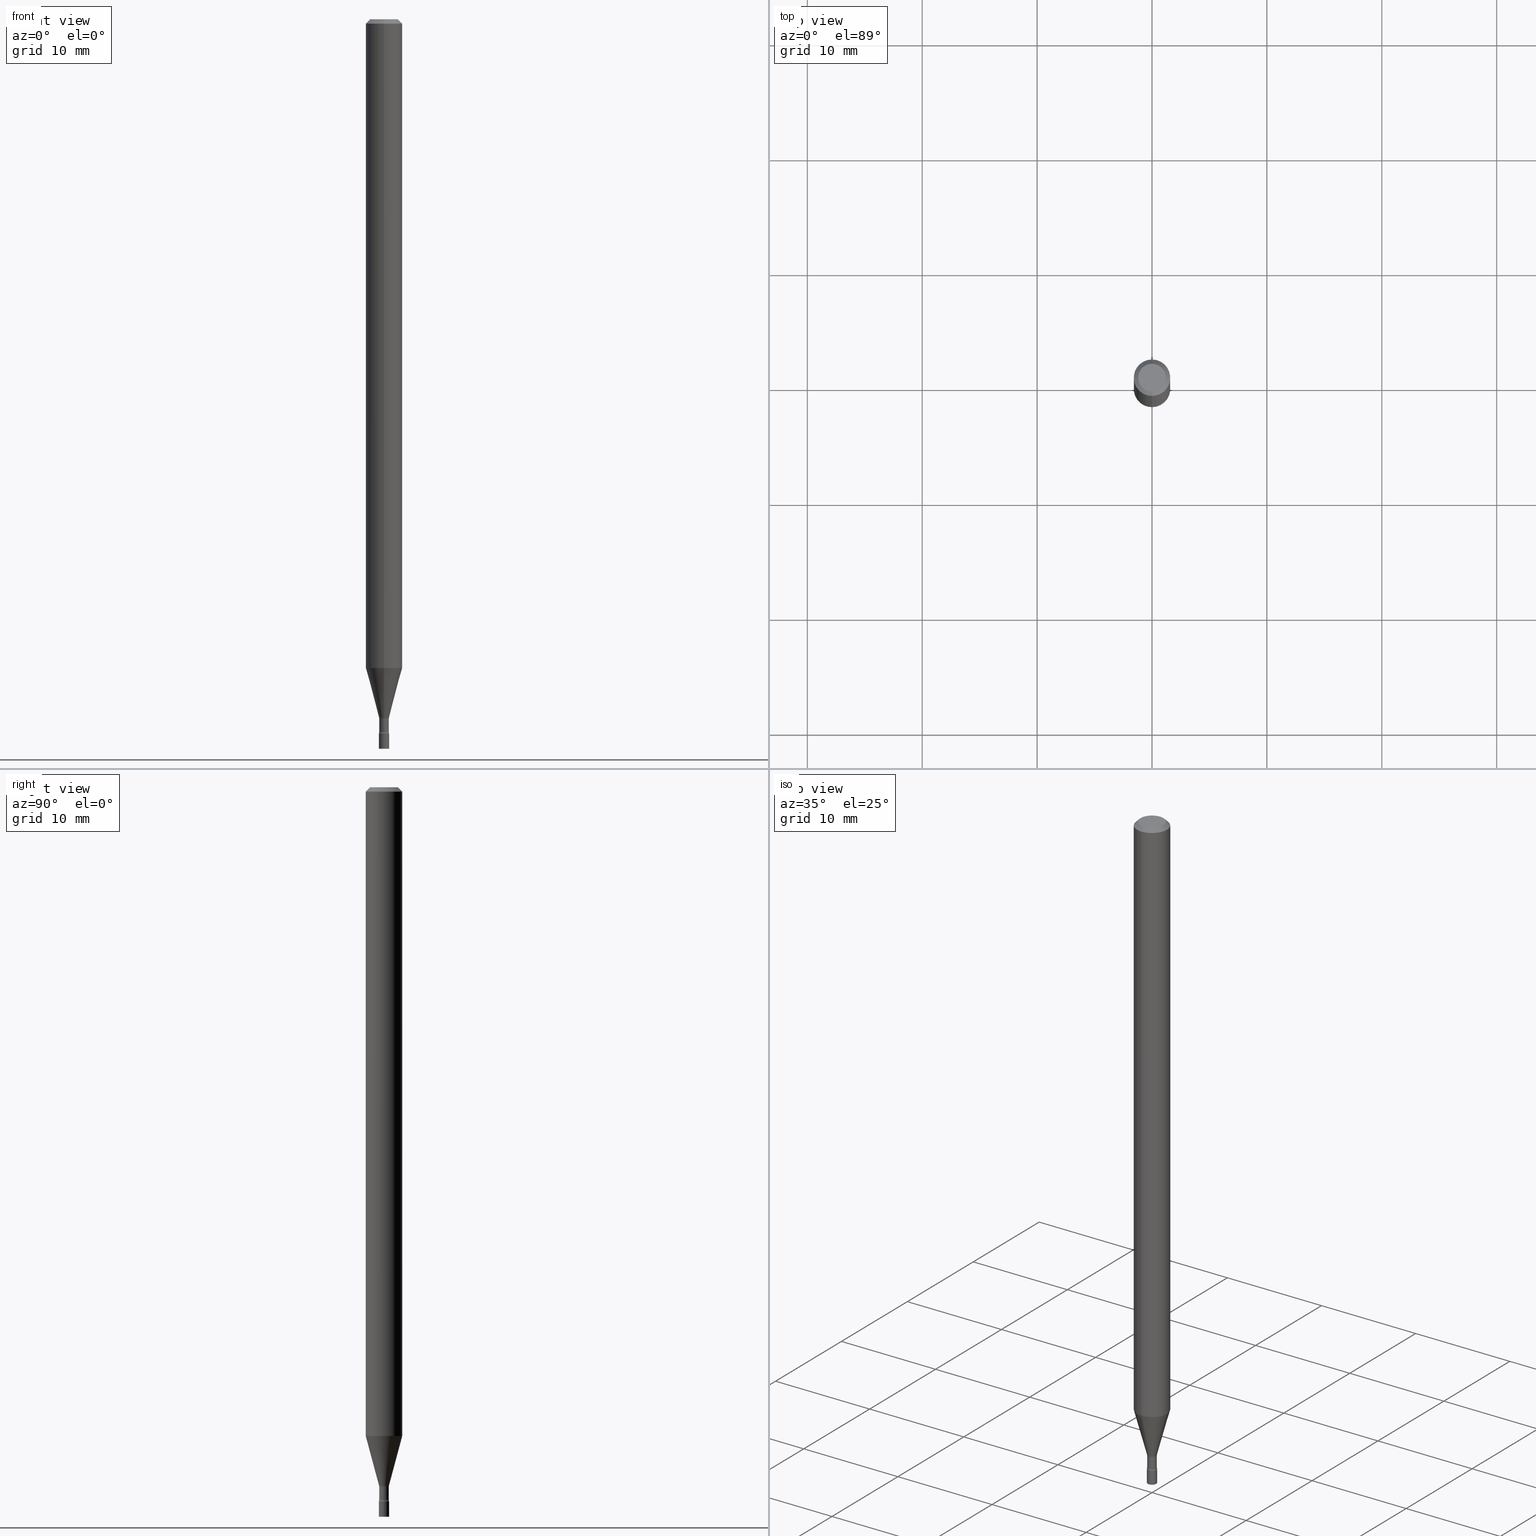
[diagram: canonical four-view strip — front | top / right | iso, engineering-drawing reading convention]
A machine part, canonical four-view strip (front | top / right | iso — engineering-drawing reading convention). The complete STEP part file that produces these views, byte-faithful:
ISO-10303-21;
HEADER;
FILE_DESCRIPTION (( 'STEP AP203' ),
    '1' );
FILE_NAME ('03514.STEP',
    '2024-03-08T21:36:56',
    ( '' ),
    ( '' ),
    'SwSTEP 2.0',
    'SolidWorks 2023',
    '' );
FILE_SCHEMA (( 'CONFIG_CONTROL_DESIGN' ));
ENDSEC;

DATA;
#1 = ADVANCED_FACE ( 'NONE', ( #246 ), #280, .T. ) ;
#2 = CIRCLE ( 'NONE', #93, 0.01644999999999999934 ) ;
#3 = LENGTH_MEASURE_WITH_UNIT ( LENGTH_MEASURE( 0.02539999999999999897 ), #130 );
#4 = ADVANCED_FACE ( 'NONE', ( #254 ), #412, .T. ) ;
#5 = ORIENTED_EDGE ( 'NONE', *, *, #512, .T. ) ;
#6 = CIRCLE ( 'NONE', #346, 0.01750000000000000167 ) ;
#7 = MANIFOLD_SOLID_BREP ( 'Body-Move/Copy2[1]', #368 ) ;
#8 = ORIENTED_EDGE ( 'NONE', *, *, #480, .T. ) ;
#9 = CYLINDRICAL_SURFACE ( 'NONE', #169, 0.01644999999999999934 ) ;
#10 = DIRECTION ( 'NONE',  ( -1.000000000000000000, 6.982962677686265922E-15, -4.883557194083112340E-29 ) ) ;
#11 = FACE_OUTER_BOUND ( 'NONE', #514, .T. ) ;
#12 = AXIS2_PLACEMENT_3D ( 'NONE', #199, #260, #312 ) ;
#13 = SECURITY_CLASSIFICATION ( '', '', #395 ) ;
#14 = CYLINDRICAL_SURFACE ( 'NONE', #318, 0.01750000000000000167 ) ;
#15 = ORIENTED_EDGE ( 'NONE', *, *, #422, .F. ) ;
#16 = UNCERTAINTY_MEASURE_WITH_UNIT (LENGTH_MEASURE( 1.000000000000000082E-05 ), #171, 'distance_accuracy_value', 'NONE');
#17 = DIRECTION ( 'NONE',  ( -6.982962677686265922E-15, -1.000000000000000000, 3.483106191921935554E-15 ) ) ;
#18 = CARTESIAN_POINT ( 'NONE',  ( -4.364351673553912750E-16, -0.06250000000000005551, -0.01499999999999981209 ) ) ;
#19 = DIRECTION ( 'NONE',  ( -2.445477489033632295E-29, 3.491468904509902525E-15, 1.000000000000000000 ) ) ;
#20 = FACE_OUTER_BOUND ( 'NONE', #289, .T. ) ;
#21 = DIRECTION ( 'NONE',  ( -2.445468806185136597E-29, 3.491481338843145583E-15, 1.000000000000000000 ) ) ;
#22 = LINE ( 'NONE', #228, #129 ) ;
#23 = APPROVAL ( #383, 'UNSPECIFIED' ) ;
#24 = FACE_OUTER_BOUND ( 'NONE', #241, .T. ) ;
#25 = AXIS2_PLACEMENT_3D ( 'NONE', #393, #70, #198 ) ;
#26 = VECTOR ( 'NONE', #453, 39.37007874015748854 ) ;
#27 = EDGE_CURVE ( 'NONE', #424, #189, #295, .T. ) ;
#28 = EDGE_CURVE ( 'NONE', #252, #455, #221, .T. ) ;
#29 = FACE_OUTER_BOUND ( 'NONE', #234, .T. ) ;
#30 = DIRECTION ( 'NONE',  ( 2.445477489033632295E-29, -3.491468904509902525E-15, -1.000000000000000000 ) ) ;
#31 = ORIENTED_EDGE ( 'NONE', *, *, #160, .F. ) ;
#32 = APPLICATION_PROTOCOL_DEFINITION ( 'international standard', 'config_control_design', 1994, #364 ) ;
#33 = ORIENTED_EDGE ( 'NONE', *, *, #99, .F. ) ;
#34 = EDGE_CURVE ( 'NONE', #517, #433, #290, .T. ) ;
#35 = DATE_TIME_ROLE ( 'creation_date' ) ;
#36 = TOROIDAL_SURFACE ( 'NONE', #56, 0.03145000000000000573, 0.01500000000000000465 ) ;
#37 = ORIENTED_EDGE ( 'NONE', *, *, #410, .F. ) ;
#38 = AXIS2_PLACEMENT_3D ( 'NONE', #128, #121, #495 ) ;
#39 = EDGE_CURVE ( 'NONE', #189, #455, #446, .T. ) ;
#40 = LOCAL_TIME ( 16, 36, 56.00000000000000000, #519 ) ;
#41 = ADVANCED_FACE ( 'NONE', ( #29 ), #297, .T. ) ;
#42 = VERTEX_POINT ( 'NONE', #338 ) ;
#43 = VECTOR ( 'NONE', #146, 39.37007874015748143 ) ;
#44 = AXIS2_PLACEMENT_3D ( 'NONE', #298, #418, #334 ) ;
#45 = APPROVAL_PERSON_ORGANIZATION ( #355, #472, #276 ) ;
#46 = CARTESIAN_POINT ( 'NONE',  ( 3.668216233550456149E-31, -5.237203356764864338E-17, -0.01500000000000003067 ) ) ;
#47 = CARTESIAN_POINT ( 'NONE',  ( 0.000000000000000000, 0.000000000000000000, 0.000000000000000000 ) ) ;
#48 = EDGE_LOOP ( 'NONE', ( #501, #487, #89, #320 ) ) ;
#49 = CARTESIAN_POINT ( 'NONE',  ( 5.970579338663440992E-29, -8.524404928127173343E-15, -2.441486607215153537 ) ) ;
#50 = DIRECTION ( 'NONE',  ( 4.937700262164548042E-15, 0.7071067811865451302, -0.7071067811865499042 ) ) ;
#51 = CARTESIAN_POINT ( 'NONE',  ( 0.01750000000000000167, -8.850905193967374926E-15, -2.500000000000000000 ) ) ;
#52 = DIRECTION ( 'NONE',  ( -6.982962677686265133E-15, -1.000000000000000000, 3.491468904509902525E-15 ) ) ;
#53 = DIRECTION ( 'NONE',  ( -2.445477489033632295E-29, 3.491468904509902525E-15, 1.000000000000000000 ) ) ;
#54 = CALENDAR_DATE ( 2024, 8, 3 ) ;
#55 = DIRECTION ( 'NONE',  ( -2.445477489033632014E-29, 3.491468904509902130E-15, 1.000000000000000000 ) ) ;
#56 = AXIS2_PLACEMENT_3D ( 'NONE', #49, #373, #327 ) ;
#57 = CARTESIAN_POINT ( 'NONE',  ( 1.222018468595707746E-16, 0.01749999999999127254, -2.500000000000000000 ) ) ;
#58 = DIRECTION ( 'NONE',  ( -6.982962677686265922E-15, -1.000000000000000000, 0.000000000000000000 ) ) ;
#59 = VERTEX_POINT ( 'NONE', #384 ) ;
#60 = DIRECTION ( 'NONE',  ( -6.982962677686265133E-15, -1.000000000000000000, 3.491468904509902525E-15 ) ) ;
#61 = CARTESIAN_POINT ( 'NONE',  ( -0.01750000000000000167, 1.243449787580175444E-16, -8.608136407946085539E-31 ) ) ;
#62 = DIRECTION ( 'NONE',  ( 1.000000000000000000, -6.982962677686265922E-15, 4.876176775795936353E-29 ) ) ;
#63 = EDGE_LOOP ( 'NONE', ( #332, #37 ) ) ;
#64 = DIRECTION ( 'NONE',  ( -6.982962677686265133E-15, -1.000000000000000000, 0.000000000000000000 ) ) ;
#65 = ADVANCED_FACE ( 'NONE', ( #461 ), #407, .F. ) ;
#66 = EDGE_CURVE ( 'NONE', #341, #59, #482, .T. ) ;
#67 = CARTESIAN_POINT ( 'NONE',  ( 5.970600537721755695E-29, -8.524374569869090973E-15, -2.441486607215153537 ) ) ;
#68 = FACE_OUTER_BOUND ( 'NONE', #155, .T. ) ;
#69 = ORIENTED_EDGE ( 'NONE', *, *, #410, .T. ) ;
#70 = DIRECTION ( 'NONE',  ( -2.445477489033632295E-29, 3.491468904509902525E-15, 1.000000000000000000 ) ) ;
#71 = CIRCLE ( 'NONE', #135, 0.01500000000000000638 ) ;
#72 = AXIS2_PLACEMENT_3D ( 'NONE', #57, #197, #463 ) ;
#73 = DIRECTION ( 'NONE',  ( 1.000000000000000000, -6.982962677686303787E-15, 0.000000000000000000 ) ) ;
#74 = AXIS2_PLACEMENT_3D ( 'NONE', #47, #132, #445 ) ;
#75 = ORIENTED_EDGE ( 'NONE', *, *, #115, .F. ) ;
#76 = CALENDAR_DATE ( 2024, 8, 3 ) ;
#77 = ORIENTED_EDGE ( 'NONE', *, *, #99, .T. ) ;
#78 = ORIENTED_EDGE ( 'NONE', *, *, #520, .T. ) ;
#79 = DIRECTION ( 'NONE',  ( 1.000000000000000000, -6.982962677686248567E-15, 0.000000000000000000 ) ) ;
#80 = CIRCLE ( 'NONE', #123, 0.01750000000000000167 ) ;
#81 = APPROVAL_DATE_TIME ( #209, #166 ) ;
#82 = APPROVAL_STATUS ( 'not_yet_approved' ) ;
#83 = ADVANCED_FACE ( 'NONE', ( #20 ), #513, .T. ) ;
#84 = VECTOR ( 'NONE', #55, 39.37007874015748143 ) ;
#85 = CONICAL_SURFACE ( 'NONE', #263, 0.06250000000000000000, 0.7853981633974483900 ) ;
#86 = APPLICATION_CONTEXT ( 'configuration controlled 3d designs of mechanical parts and assemblies' ) ;
#87 = DIMENSIONAL_EXPONENTS ( 1.000000000000000000, 0.000000000000000000, 0.000000000000000000, 0.000000000000000000, 0.000000000000000000, 0.000000000000000000, 0.000000000000000000 ) ;
#88 = EDGE_CURVE ( 'NONE', #42, #341, #92, .T. ) ;
#89 = ORIENTED_EDGE ( 'NONE', *, *, #283, .F. ) ;
#90 = CARTESIAN_POINT ( 'NONE',  ( -2.196141762131744153E-16, -0.03145000000000836710, -2.396974787463811207 ) ) ;
#91 = EDGE_CURVE ( 'NONE', #42, #356, #71, .T. ) ;
#92 = CIRCLE ( 'NONE', #168, 0.01645000000000000281 ) ;
#93 = AXIS2_PLACEMENT_3D ( 'NONE', #96, #112, #192 ) ;
#94 = CC_DESIGN_SECURITY_CLASSIFICATION ( #13, ( #434 ) ) ;
#95 = ORIENTED_EDGE ( 'NONE', *, *, #273, .F. ) ;
#96 = CARTESIAN_POINT ( 'NONE',  ( 5.861747884523924640E-29, -8.368962935324130007E-15, -2.396974787463811207 ) ) ;
#97 = DIRECTION ( 'NONE',  ( -6.982962677686266711E-15, -1.000000000000000000, 0.000000000000000000 ) ) ;
#98 = CARTESIAN_POINT ( 'NONE',  ( 3.840629472727447874E-16, 0.04749999999999999362, -1.947592745229183872E-16 ) ) ;
#99 = EDGE_CURVE ( 'NONE', #517, #424, #466, .T. ) ;
#100 = FACE_OUTER_BOUND ( 'NONE', #205, .T. ) ;
#101 = APPROVAL_ROLE ( '' ) ;
#102 = CARTESIAN_POINT ( 'NONE',  ( -4.364351673553916201E-16, -0.06250000000000000000, 2.182168065318689078E-16 ) ) ;
#103 = CARTESIAN_POINT ( 'NONE',  ( 3.668216233550456149E-31, -5.237203356764864338E-17, -0.01500000000000003067 ) ) ;
#104 = PERSON_AND_ORGANIZATION ( #358, #518 ) ;
#105 = DATE_AND_TIME ( #54, #207 ) ;
#106 = ORIENTED_EDGE ( 'NONE', *, *, #452, .F. ) ;
#107 = AXIS2_PLACEMENT_3D ( 'NONE', #103, #386, #339 ) ;
#108 = DIRECTION ( 'NONE',  ( -4.851104656540964275E-15, -0.7071067811865500152, -0.7071067811865450192 ) ) ;
#109 = CARTESIAN_POINT ( 'NONE',  ( 5.970579338663440992E-29, -8.524404928127173343E-15, -2.441486607215153537 ) ) ;
#110 = AXIS2_PLACEMENT_3D ( 'NONE', #429, #479, #443 ) ;
#111 = DIRECTION ( 'NONE',  ( 6.982962677686265922E-15, 1.000000000000000000, -3.483106191921935554E-15 ) ) ;
#112 = DIRECTION ( 'NONE',  ( -2.445477489033632295E-29, 3.491468904509902525E-15, 1.000000000000000000 ) ) ;
#113 = PERSON_AND_ORGANIZATION_ROLE ( 'design_supplier' ) ;
#114 = ORIENTED_EDGE ( 'NONE', *, *, #361, .F. ) ;
#115 = EDGE_CURVE ( 'NONE', #396, #277, #285, .T. ) ;
#116 = DIRECTION ( 'NONE',  ( 1.839019923739598738E-15, 0.2588190451025247363, 0.9659258262890673130 ) ) ;
#117 = CARTESIAN_POINT ( 'NONE',  ( -4.287811248607203282E-16, -0.06250000000000005551, -0.01499999999999981209 ) ) ;
#118 = CARTESIAN_POINT ( 'NONE',  ( 4.440892098501173434E-16, 0.06249999999999995143, -0.01500000000000024751 ) ) ;
#119 = ORIENTED_EDGE ( 'NONE', *, *, #459, .F. ) ;
#120 = CARTESIAN_POINT ( 'NONE',  ( 1.205159535236945642E-16, 0.01696111260565562676, -2.393092501787273285 ) ) ;
#121 = DIRECTION ( 'NONE',  ( -2.445477489033632295E-29, 3.491468904509902525E-15, 1.000000000000000000 ) ) ;
#122 = ORIENTED_EDGE ( 'NONE', *, *, #512, .F. ) ;
#123 = AXIS2_PLACEMENT_3D ( 'NONE', #148, #53, #58 ) ;
#124 = PRODUCT_RELATED_PRODUCT_CATEGORY ( 'detail', '', ( #389 ) ) ;
#125 = ORIENTED_EDGE ( 'NONE', *, *, #34, .T. ) ;
#126 = ORIENTED_EDGE ( 'NONE', *, *, #385, .T. ) ;
#127 = CARTESIAN_POINT ( 'NONE',  ( 2.823025816869059292E-16, 0.01696111260565562676, -2.393092501787273285 ) ) ;
#128 = CARTESIAN_POINT ( 'NONE',  ( 5.984083415665299099E-29, -8.543624409335733138E-15, -2.447000000000000064 ) ) ;
#129 = VECTOR ( 'NONE', #375, 39.37007874015748143 ) ;
#130 =( LENGTH_UNIT ( ) NAMED_UNIT ( * ) SI_UNIT ( $, .METRE. ) );
#131 = ADVANCED_FACE ( 'NONE', ( #24 ), #311, .F. ) ;
#132 = DIRECTION ( 'NONE',  ( 0.000000000000000000, 0.000000000000000000, 1.000000000000000000 ) ) ;
#133 = ADVANCED_FACE ( 'NONE', ( #272 ), #36, .F. ) ;
#134 = AXIS2_PLACEMENT_3D ( 'NONE', #259, #417, #17 ) ;
#135 = AXIS2_PLACEMENT_3D ( 'NONE', #425, #304, #156 ) ;
#136 = VERTEX_POINT ( 'NONE', #98 ) ;
#137 = ORIENTED_EDGE ( 'NONE', *, *, #88, .T. ) ;
#138 = ORIENTED_EDGE ( 'NONE', *, *, #141, .T. ) ;
#139 = LINE ( 'NONE', #468, #391 ) ;
#140 = CONICAL_SURFACE ( 'NONE', #107, 0.06250000000000000000, 0.7853981633974483900 ) ;
#141 = EDGE_CURVE ( 'NONE', #455, #189, #323, .T. ) ;
#142 = DIRECTION ( 'NONE',  ( -2.445477489033632295E-29, 3.491468904509902525E-15, 1.000000000000000000 ) ) ;
#143 = DIRECTION ( 'NONE',  ( 1.000000000000000000, -6.982962677686265922E-15, 4.876176775795936353E-29 ) ) ;
#144 = DIRECTION ( 'NONE',  ( -2.445477489033632295E-29, 3.491468904509902525E-15, 1.000000000000000000 ) ) ;
#145 = DIRECTION ( 'NONE',  ( -2.445477489033632295E-29, 3.491468904509902525E-15, 1.000000000000000000 ) ) ;
#146 = DIRECTION ( 'NONE',  ( -2.445477489033632014E-29, 3.491468904509902130E-15, 1.000000000000000000 ) ) ;
#147 = LINE ( 'NONE', #183, #220 ) ;
#148 = CARTESIAN_POINT ( 'NONE',  ( 5.984083415665299099E-29, -8.543624409335733138E-15, -2.447000000000000064 ) ) ;
#149 = PERSON_AND_ORGANIZATION ( #358, #518 ) ;
#150 = CC_DESIGN_PERSON_AND_ORGANIZATION_ASSIGNMENT ( #104, #262, ( #434 ) ) ;
#151 = CIRCLE ( 'NONE', #38, 0.01750000000000000167 ) ;
#152 = DIRECTION ( 'NONE',  ( -2.445477489033632295E-29, 3.491468904509902525E-15, 1.000000000000000000 ) ) ;
#153 = LOCAL_TIME ( 16, 36, 56.00000000000000000, #476 ) ;
#154 = FACE_OUTER_BOUND ( 'NONE', #449, .T. ) ;
#155 = EDGE_LOOP ( 'NONE', ( #337, #164 ) ) ;
#156 = DIRECTION ( 'NONE',  ( 7.105427357601000281E-15, 1.000000000000000000, 0.000000000000000000 ) ) ;
#157 = CARTESIAN_POINT ( 'NONE',  ( 3.668216233550456149E-31, -5.237203356764864338E-17, -0.01500000000000003067 ) ) ;
#158 = EDGE_LOOP ( 'NONE', ( #126, #77, #279, #95 ) ) ;
#159 = ORIENTED_EDGE ( 'NONE', *, *, #186, .F. ) ;
#160 = EDGE_CURVE ( 'NONE', #433, #277, #441, .T. ) ;
#161 = AXIS2_PLACEMENT_3D ( 'NONE', #380, #342, #226 ) ;
#162 = APPROVAL_DATE_TIME ( #515, #472 ) ;
#163 = VECTOR ( 'NONE', #467, 39.37007874015748143 ) ;
#164 = ORIENTED_EDGE ( 'NONE', *, *, #213, .F. ) ;
#165 = FACE_OUTER_BOUND ( 'NONE', #397, .T. ) ;
#166 = APPROVAL ( #82, 'UNSPECIFIED' ) ;
#167 = CARTESIAN_POINT ( 'NONE',  ( 5.984062168735030320E-29, -8.543654836149177676E-15, -2.447000000000000064 ) ) ;
#168 = AXIS2_PLACEMENT_3D ( 'NONE', #195, #152, #430 ) ;
#169 = AXIS2_PLACEMENT_3D ( 'NONE', #267, #145, #270 ) ;
#170 = CC_DESIGN_APPROVAL ( #166, ( #434 ) ) ;
#171 =( CONVERSION_BASED_UNIT ( 'INCH', #3 ) LENGTH_UNIT ( ) NAMED_UNIT ( #87 ) );
#172 = VERTEX_POINT ( 'NONE', #51 ) ;
#173 = AXIS2_PLACEMENT_3D ( 'NONE', #426, #21, #191 ) ;
#174 = AXIS2_PLACEMENT_3D ( 'NONE', #324, #360, #208 ) ;
#175 = ORIENTED_EDGE ( 'NONE', *, *, #34, .F. ) ;
#176 = VERTEX_POINT ( 'NONE', #180 ) ;
#177 = CARTESIAN_POINT ( 'NONE',  ( -3.773273898774340269E-16, -0.04749999999999999362, 1.369302714055223142E-16 ) ) ;
#178 = ADVANCED_FACE ( 'NONE', ( #68 ), #223, .F. ) ;
#179 = DIRECTION ( 'NONE',  ( -2.445477489033632295E-29, 3.491468904509902525E-15, 1.000000000000000000 ) ) ;
#180 = CARTESIAN_POINT ( 'NONE',  ( -0.01750000000000000167, -8.511834112870504850E-15, -2.500000000000000000 ) ) ;
#181 = CLOSED_SHELL ( 'NONE', ( #245, #287, #65, #345, #201, #1, #217, #308, #333, #131, #178, #133, #41, #317 ) ) ;
#182 = CIRCLE ( 'NONE', #244, 0.04749999999999999362 ) ;
#183 = CARTESIAN_POINT ( 'NONE',  ( 0.01750000000000000167, -1.222018468595096625E-16, 8.533309357642889039E-31 ) ) ;
#184 = ORIENTED_EDGE ( 'NONE', *, *, #160, .T. ) ;
#185 = DIRECTION ( 'NONE',  ( -2.445477489033632295E-29, 3.491468904509902525E-15, 1.000000000000000000 ) ) ;
#186 = EDGE_CURVE ( 'NONE', #136, #189, #139, .T. ) ;
#187 = DIRECTION ( 'NONE',  ( -2.445477489033632295E-29, 3.491468904509902130E-15, 1.000000000000000000 ) ) ;
#188 = PERSON_AND_ORGANIZATION ( #358, #518 ) ;
#189 = VERTEX_POINT ( 'NONE', #118 ) ;
#190 = CARTESIAN_POINT ( 'NONE',  ( 5.984062168735030320E-29, -8.543654836149177676E-15, -2.447000000000000064 ) ) ;
#191 = DIRECTION ( 'NONE',  ( 1.000000000000000000, -6.982962677686303787E-15, 0.000000000000000000 ) ) ;
#192 = DIRECTION ( 'NONE',  ( -6.982962677686266711E-15, -1.000000000000000000, 0.000000000000000000 ) ) ;
#193 = AXIS2_PLACEMENT_3D ( 'NONE', #109, #268, #60 ) ;
#194 = AXIS2_PLACEMENT_3D ( 'NONE', #335, #454, #233 ) ;
#195 = CARTESIAN_POINT ( 'NONE',  ( 5.970600537721755695E-29, -8.524374569869090973E-15, -2.441486607215153537 ) ) ;
#196 = MANIFOLD_SOLID_BREP ( 'Body-Move/Copy2[2]', #181 ) ;
#197 = DIRECTION ( 'NONE',  ( 2.438088387897960049E-29, -3.491481338843145188E-15, -1.000000000000000000 ) ) ;
#198 = DIRECTION ( 'NONE',  ( -6.982962677686266711E-15, -1.000000000000000000, 3.491468904509902919E-15 ) ) ;
#199 = CARTESIAN_POINT ( 'NONE',  ( 5.852253842295953472E-29, -8.355408055606071752E-15, -2.393092501787273285 ) ) ;
#200 = EDGE_LOOP ( 'NONE', ( #106, #8, #138, #159 ) ) ;
#201 = ADVANCED_FACE ( 'NONE', ( #100 ), #379, .T. ) ;
#202 = ORIENTED_EDGE ( 'NONE', *, *, #511, .T. ) ;
#203 = PERSON_AND_ORGANIZATION ( #358, #518 ) ;
#204 = AXIS2_PLACEMENT_3D ( 'NONE', #299, #419, #423 ) ;
#205 = EDGE_LOOP ( 'NONE', ( #202, #497, #248, #469 ) ) ;
#206 = AXIS2_PLACEMENT_3D ( 'NONE', #231, #185, #388 ) ;
#207 = LOCAL_TIME ( 16, 36, 56.00000000000000000, #415 ) ;
#208 = DIRECTION ( 'NONE',  ( -6.982962677686266711E-15, -1.000000000000000000, 3.491468904509902525E-15 ) ) ;
#209 = DATE_AND_TIME ( #448, #363 ) ;
#210 = EDGE_LOOP ( 'NONE', ( #351, #15, #477, #436 ) ) ;
#211 = AXIS2_PLACEMENT_3D ( 'NONE', #90, #10, #413 ) ;
#212 = AXIS2_PLACEMENT_3D ( 'NONE', #167, #284, #79 ) ;
#213 = EDGE_CURVE ( 'NONE', #356, #59, #80, .T. ) ;
#214 = ORIENTED_EDGE ( 'NONE', *, *, #39, .T. ) ;
#215 = DIRECTION ( 'NONE',  ( -6.982962677686265922E-15, -1.000000000000000000, 3.483106191921935554E-15 ) ) ;
#216 = CARTESIAN_POINT ( 'NONE',  ( 0.000000000000000000, 0.000000000000000000, 0.000000000000000000 ) ) ;
#217 = ADVANCED_FACE ( 'NONE', ( #154 ), #300, .T. ) ;
#218 = DIRECTION ( 'NONE',  ( 1.000000000000000000, -6.982962677686248567E-15, 0.000000000000000000 ) ) ;
#219 = FACE_OUTER_BOUND ( 'NONE', #450, .T. ) ;
#220 = VECTOR ( 'NONE', #471, 39.37007874015748143 ) ;
#221 = LINE ( 'NONE', #102, #43 ) ;
#222 = CARTESIAN_POINT ( 'NONE',  ( 0.01750000000000000167, -8.665856683008687659E-15, -2.447000000000000064 ) ) ;
#223 = PLANE ( 'NONE',  #400 ) ;
#224 = CALENDAR_DATE ( 2024, 8, 3 ) ;
#225 = ORIENTED_EDGE ( 'NONE', *, *, #91, .T. ) ;
#226 = DIRECTION ( 'NONE',  ( -6.982962677686266711E-15, -1.000000000000000000, 0.000000000000000000 ) ) ;
#227 = LINE ( 'NONE', #117, #447 ) ;
#228 = CARTESIAN_POINT ( 'NONE',  ( -1.148697360479390763E-16, -0.01644999999999999934, 5.743466347918789876E-17 ) ) ;
#229 = SHAPE_DEFINITION_REPRESENTATION ( #309, #478 ) ;
#230 = ORIENTED_EDGE ( 'NONE', *, *, #27, .F. ) ;
#231 = CARTESIAN_POINT ( 'NONE',  ( 5.861747884523924640E-29, -8.368962935324130007E-15, -2.396974787463811207 ) ) ;
#232 = CARTESIAN_POINT ( 'NONE',  ( 1.168842800325962075E-16, 0.01644999999999163451, -2.396974787463811207 ) ) ;
#233 = DIRECTION ( 'NONE',  ( -6.982962677686265133E-15, -1.000000000000000000, 3.491468904509902525E-15 ) ) ;
#234 = EDGE_LOOP ( 'NONE', ( #114, #137, #399, #75 ) ) ;
#235 = TOROIDAL_SURFACE ( 'NONE', #243, 0.03144999999999999879, 0.01500000000000002373 ) ;
#236 = CARTESIAN_POINT ( 'NONE',  ( 4.440892098501168504E-16, 0.06249999999999222844, -2.223139060311453807 ) ) ;
#237 = EDGE_CURVE ( 'NONE', #341, #277, #22, .T. ) ;
#238 = ORIENTED_EDGE ( 'NONE', *, *, #310, .T. ) ;
#239 = PRODUCT_DEFINITION ( 'UNKNOWN', '', #434, #371 ) ;
#240 = EDGE_LOOP ( 'NONE', ( #301, #456, #184, #354 ) ) ;
#241 = EDGE_LOOP ( 'NONE', ( #5, #491 ) ) ;
#242 = ADVANCED_FACE ( 'NONE', ( #219 ), #14, .T. ) ;
#243 = AXIS2_PLACEMENT_3D ( 'NONE', #427, #142, #52 ) ;
#244 = AXIS2_PLACEMENT_3D ( 'NONE', #305, #144, #377 ) ;
#245 = ADVANCED_FACE ( 'NONE', ( #496 ), #462, .F. ) ;
#246 = FACE_OUTER_BOUND ( 'NONE', #158, .T. ) ;
#247 = APPROVAL_ROLE ( '' ) ;
#248 = ORIENTED_EDGE ( 'NONE', *, *, #141, .F. ) ;
#249 = AXIS2_PLACEMENT_3D ( 'NONE', #352, #498, #64 ) ;
#250 = AXIS2_PLACEMENT_3D ( 'NONE', #46, #255, #215 ) ;
#251 =( GEOMETRIC_REPRESENTATION_CONTEXT ( 3 ) GLOBAL_UNCERTAINTY_ASSIGNED_CONTEXT ( ( #16 ) ) GLOBAL_UNIT_ASSIGNED_CONTEXT ( ( #171, #258, #288 ) ) REPRESENTATION_CONTEXT ( 'NONE', 'WORKASPACE' ) );
#252 = VERTEX_POINT ( 'NONE', #382 ) ;
#253 = FACE_OUTER_BOUND ( 'NONE', #48, .T. ) ;
#254 = FACE_OUTER_BOUND ( 'NONE', #264, .T. ) ;
#255 = DIRECTION ( 'NONE',  ( -2.445477489033632295E-29, 3.491468904509902525E-15, 1.000000000000000000 ) ) ;
#256 = CARTESIAN_POINT ( 'NONE',  ( 1.222018468595694927E-16, 0.01749999999999145642, -2.447000000000000064 ) ) ;
#257 = DATE_AND_TIME ( #224, #505 ) ;
#258 =( NAMED_UNIT ( * ) PLANE_ANGLE_UNIT ( ) SI_UNIT ( $, .RADIAN. ) );
#259 = CARTESIAN_POINT ( 'NONE',  ( 3.668216233550456149E-31, -5.237203356764864338E-17, -0.01500000000000003067 ) ) ;
#260 = DIRECTION ( 'NONE',  ( -2.445477489033632295E-29, 3.491468904509902525E-15, 1.000000000000000000 ) ) ;
#261 = DIRECTION ( 'NONE',  ( -6.982962677686265922E-15, -1.000000000000000000, 3.491468904509902525E-15 ) ) ;
#262 = PERSON_AND_ORGANIZATION_ROLE ( 'creator' ) ;
#263 = AXIS2_PLACEMENT_3D ( 'NONE', #157, #30, #111 ) ;
#264 = EDGE_LOOP ( 'NONE', ( #119, #69, #401, #416 ) ) ;
#265 = DIRECTION ( 'NONE',  ( -2.438088387897960049E-29, 3.491481338843145188E-15, 1.000000000000000000 ) ) ;
#266 = LINE ( 'NONE', #61, #163 ) ;
#267 = CARTESIAN_POINT ( 'NONE',  ( 0.000000000000000000, 0.000000000000000000, 0.000000000000000000 ) ) ;
#268 = DIRECTION ( 'NONE',  ( -2.445477489033632295E-29, 3.491468904509902525E-15, 1.000000000000000000 ) ) ;
#269 = CARTESIAN_POINT ( 'NONE',  ( 1.243449787580773745E-16, 0.01749999999999145642, -2.447000000000000064 ) ) ;
#270 = DIRECTION ( 'NONE',  ( -6.982962677686266711E-15, -1.000000000000000000, 3.491468904509902919E-15 ) ) ;
#271 = ORIENTED_EDGE ( 'NONE', *, *, #39, .F. ) ;
#272 = FACE_OUTER_BOUND ( 'NONE', #210, .T. ) ;
#273 = EDGE_CURVE ( 'NONE', #433, #252, #464, .T. ) ;
#274 = ORIENTED_EDGE ( 'NONE', *, *, #115, .T. ) ;
#275 = CIRCLE ( 'NONE', #329, 0.01750000000000000167 ) ;
#276 = APPROVAL_ROLE ( '' ) ;
#277 = VERTEX_POINT ( 'NONE', #387 ) ;
#278 = APPROVAL_STATUS ( 'not_yet_approved' ) ;
#279 = ORIENTED_EDGE ( 'NONE', *, *, #511, .F. ) ;
#280 = CONICAL_SURFACE ( 'NONE', #473, 0.01696111260566398118, 0.2617993877991500740 ) ;
#281 = DIRECTION ( 'NONE',  ( -2.445468806185136597E-29, 3.491481338843145583E-15, 1.000000000000000000 ) ) ;
#282 = CIRCLE ( 'NONE', #451, 0.06250000000000000000 ) ;
#283 = EDGE_CURVE ( 'NONE', #277, #396, #2, .T. ) ;
#284 = DIRECTION ( 'NONE',  ( -2.445468806185136597E-29, 3.491481338843145583E-15, 1.000000000000000000 ) ) ;
#285 = CIRCLE ( 'NONE', #206, 0.01644999999999999934 ) ;
#286 = APPROVAL_PERSON_ORGANIZATION ( #188, #23, #101 ) ;
#287 = ADVANCED_FACE ( 'NONE', ( #253 ), #9, .T. ) ;
#288 =( NAMED_UNIT ( * ) SI_UNIT ( $, .STERADIAN. ) SOLID_ANGLE_UNIT ( ) );
#289 = EDGE_LOOP ( 'NONE', ( #78, #428 ) ) ;
#290 = CIRCLE ( 'NONE', #161, 0.01696111260566398118 ) ;
#291 = AXIS2_PLACEMENT_3D ( 'NONE', #349, #507, #470 ) ;
#292 = CARTESIAN_POINT ( 'NONE',  ( -1.184388162973271173E-16, -0.01696111260567233561, -2.393092501787273285 ) ) ;
#293 = EDGE_LOOP ( 'NONE', ( #489, #225, #439, #465 ) ) ;
#294 = CARTESIAN_POINT ( 'NONE',  ( 0.000000000000000000, 0.000000000000000000, 0.000000000000000000 ) ) ;
#295 = LINE ( 'NONE', #405, #84 ) ;
#296 = CYLINDRICAL_SURFACE ( 'NONE', #486, 0.06250000000000000000 ) ;
#297 = CYLINDRICAL_SURFACE ( 'NONE', #25, 0.01644999999999999934 ) ;
#298 = CARTESIAN_POINT ( 'NONE',  ( 2.234656903966100728E-16, 0.03144999999999163048, -2.396974787463811207 ) ) ;
#299 = CARTESIAN_POINT ( 'NONE',  ( 5.852253842295953472E-29, -8.355408055606071752E-15, -2.393092501787273285 ) ) ;
#300 = CONICAL_SURFACE ( 'NONE', #204, 0.01696111260566398118, 0.2617993877991500740 ) ;
#301 = ORIENTED_EDGE ( 'NONE', *, *, #403, .F. ) ;
#302 = CIRCLE ( 'NONE', #212, 0.01750000000000000167 ) ;
#303 = CC_DESIGN_DATE_AND_TIME_ASSIGNMENT ( #105, #306, ( #13 ) ) ;
#304 = DIRECTION ( 'NONE',  ( 1.000000000000000000, -7.105427357601001070E-15, 4.926315356265418152E-29 ) ) ;
#305 = CARTESIAN_POINT ( 'NONE',  ( 7.070976266842395393E-46, -1.009540830815973690E-31, -2.891450155869804887E-17 ) ) ;
#306 = DATE_TIME_ROLE ( 'classification_date' ) ;
#307 = ORIENTED_EDGE ( 'NONE', *, *, #28, .T. ) ;
#308 = ADVANCED_FACE ( 'NONE', ( #11 ), #296, .T. ) ;
#309 = PRODUCT_DEFINITION_SHAPE ( 'NONE', 'NONE',  #239 ) ;
#310 = EDGE_CURVE ( 'NONE', #424, #252, #282, .T. ) ;
#311 = PLANE ( 'NONE',  #291 ) ;
#312 = DIRECTION ( 'NONE',  ( -6.982962677686266711E-15, -1.000000000000000000, 0.000000000000000000 ) ) ;
#313 = PERSON_AND_ORGANIZATION ( #358, #518 ) ;
#314 = VERTEX_POINT ( 'NONE', #493 ) ;
#315 = PERSON_AND_ORGANIZATION_ROLE ( 'classification_officer' ) ;
#316 = VERTEX_POINT ( 'NONE', #177 ) ;
#317 = ADVANCED_FACE ( 'NONE', ( #458 ), #235, .F. ) ;
#318 = AXIS2_PLACEMENT_3D ( 'NONE', #294, #340, #62 ) ;
#319 = PERSON_AND_ORGANIZATION_ROLE ( 'creator' ) ;
#320 = ORIENTED_EDGE ( 'NONE', *, *, #237, .F. ) ;
#321 = LINE ( 'NONE', #481, #369 ) ;
#322 = AXIS2_PLACEMENT_3D ( 'NONE', #190, #265, #502 ) ;
#323 = CIRCLE ( 'NONE', #250, 0.06250000000000000000 ) ;
#324 = CARTESIAN_POINT ( 'NONE',  ( 7.070976266842395393E-46, -1.009540830815973690E-31, -2.891450155869804887E-17 ) ) ;
#325 = CC_DESIGN_PERSON_AND_ORGANIZATION_ASSIGNMENT ( #402, #435, ( #389 ) ) ;
#326 = ADVANCED_FACE ( 'NONE', ( #350 ), #504, .T. ) ;
#327 = DIRECTION ( 'NONE',  ( -6.982962677686265133E-15, -1.000000000000000000, 3.491468904509902525E-15 ) ) ;
#328 = CARTESIAN_POINT ( 'NONE',  ( 0.000000000000000000, 0.000000000000000000, 0.000000000000000000 ) ) ;
#329 = AXIS2_PLACEMENT_3D ( 'NONE', #394, #281, #218 ) ;
#330 = DIRECTION ( 'NONE',  ( -2.445477489033632295E-29, 3.491468904509902525E-15, 1.000000000000000000 ) ) ;
#331 = APPROVAL_PERSON_ORGANIZATION ( #203, #166, #247 ) ;
#332 = ORIENTED_EDGE ( 'NONE', *, *, #362, .F. ) ;
#333 = ADVANCED_FACE ( 'NONE', ( #165 ), #85, .T. ) ;
#334 = DIRECTION ( 'NONE',  ( 7.105427357600999492E-15, 1.000000000000000000, 0.000000000000000000 ) ) ;
#335 = CARTESIAN_POINT ( 'NONE',  ( 5.861727071954997320E-29, -8.368992740107411140E-15, -2.396974787463811207 ) ) ;
#336 = APPROVAL_DATE_TIME ( #257, #23 ) ;
#337 = ORIENTED_EDGE ( 'NONE', *, *, #404, .F. ) ;
#338 = CARTESIAN_POINT ( 'NONE',  ( 1.206146293953367664E-16, 0.01644999999999147838, -2.441486607215153537 ) ) ;
#339 = DIRECTION ( 'NONE',  ( 6.982962677686265922E-15, 1.000000000000000000, -3.483106191921935554E-15 ) ) ;
#340 = DIRECTION ( 'NONE',  ( -2.445468806185136597E-29, 3.491481338843145583E-15, 1.000000000000000000 ) ) ;
#341 = VERTEX_POINT ( 'NONE', #499 ) ;
#342 = DIRECTION ( 'NONE',  ( -2.445477489033632295E-29, 3.491468904509902525E-15, 1.000000000000000000 ) ) ;
#343 = CARTESIAN_POINT ( 'NONE',  ( 6.113672015462842613E-29, -8.728703347107864943E-15, -2.500000000000000000 ) ) ;
#344 = DIRECTION ( 'NONE',  ( -6.982962677686265922E-15, -1.000000000000000000, 3.491468904509902525E-15 ) ) ;
#345 = ADVANCED_FACE ( 'NONE', ( #457 ), #140, .T. ) ;
#346 = AXIS2_PLACEMENT_3D ( 'NONE', #343, #353, #73 ) ;
#347 = ORIENTED_EDGE ( 'NONE', *, *, #310, .F. ) ;
#348 = CC_DESIGN_PERSON_AND_ORGANIZATION_ASSIGNMENT ( #149, #113, ( #434 ) ) ;
#349 = CARTESIAN_POINT ( 'NONE',  ( 3.316907271900976096E-16, 0.04749999999999999362, -1.803020237435693998E-16 ) ) ;
#350 = FACE_OUTER_BOUND ( 'NONE', #63, .T. ) ;
#351 = ORIENTED_EDGE ( 'NONE', *, *, #91, .F. ) ;
#352 = CARTESIAN_POINT ( 'NONE',  ( -2.196141762131733800E-16, -0.03145000000000853363, -2.441486607215153537 ) ) ;
#353 = DIRECTION ( 'NONE',  ( -2.445468806185136597E-29, 3.491481338843145583E-15, 1.000000000000000000 ) ) ;
#354 = ORIENTED_EDGE ( 'NONE', *, *, #283, .T. ) ;
#355 = PERSON_AND_ORGANIZATION ( #358, #518 ) ;
#356 = VERTEX_POINT ( 'NONE', #269 ) ;
#357 = PERSON_AND_ORGANIZATION ( #358, #518 ) ;
#358 = PERSON ( 'UNSPECIFIED', 'UNSPECIFIED', 'UNSPECIFIED', ('UNSPECIFIED'), ('UNSPECIFIED'), ('UNSPECIFIED') ) ;
#359 = ORIENTED_EDGE ( 'NONE', *, *, #366, .F. ) ;
#360 = DIRECTION ( 'NONE',  ( -2.445477489033632295E-29, 3.491468904509902525E-15, 1.000000000000000000 ) ) ;
#361 = EDGE_CURVE ( 'NONE', #42, #396, #321, .T. ) ;
#362 = EDGE_CURVE ( 'NONE', #172, #176, #408, .T. ) ;
#363 = LOCAL_TIME ( 16, 36, 56.00000000000000000, #484 ) ;
#364 = APPLICATION_CONTEXT ( 'configuration controlled 3d designs of mechanical parts and assemblies' ) ;
#365 = MECHANICAL_CONTEXT ( 'NONE', #86, 'mechanical' ) ;
#366 = EDGE_CURVE ( 'NONE', #172, #406, #147, .T. ) ;
#367 = ORIENTED_EDGE ( 'NONE', *, *, #186, .T. ) ;
#368 = CLOSED_SHELL ( 'NONE', ( #242, #83, #4, #326 ) ) ;
#369 = VECTOR ( 'NONE', #508, 39.37007874015748143 ) ;
#370 = CC_DESIGN_APPROVAL ( #472, ( #239 ) ) ;
#371 = DESIGN_CONTEXT ( 'detailed design', #364, 'design' ) ;
#372 = ORIENTED_EDGE ( 'NONE', *, *, #403, .T. ) ;
#373 = DIRECTION ( 'NONE',  ( -2.445477489033632295E-29, 3.491468904509902525E-15, 1.000000000000000000 ) ) ;
#374 = CARTESIAN_POINT ( 'NONE',  ( 5.852253842295953472E-29, -8.355408055606071752E-15, -2.393092501787273285 ) ) ;
#375 = DIRECTION ( 'NONE',  ( -2.445477489033632014E-29, 3.491468904509902130E-15, 1.000000000000000000 ) ) ;
#376 = CC_DESIGN_PERSON_AND_ORGANIZATION_ASSIGNMENT ( #357, #319, ( #239 ) ) ;
#377 = DIRECTION ( 'NONE',  ( -6.982962677686266711E-15, -1.000000000000000000, 3.491468904509902525E-15 ) ) ;
#378 = CIRCLE ( 'NONE', #12, 0.01696111260566398118 ) ;
#379 = CYLINDRICAL_SURFACE ( 'NONE', #503, 0.06250000000000000000 ) ;
#380 = CARTESIAN_POINT ( 'NONE',  ( 5.852253842295953472E-29, -8.355408055606071752E-15, -2.393092501787273285 ) ) ;
#381 = CARTESIAN_POINT ( 'NONE',  ( -1.184388162973271173E-16, -0.01696111260567233561, -2.393092501787273285 ) ) ;
#382 = CARTESIAN_POINT ( 'NONE',  ( -4.364351673553374845E-16, -0.06250000000000778544, -2.223139060311453363 ) ) ;
#383 = APPROVAL_STATUS ( 'not_yet_approved' ) ;
#384 = CARTESIAN_POINT ( 'NONE',  ( -1.222018468594497830E-16, -0.01750000000000854344, -2.447000000000000064 ) ) ;
#385 = EDGE_CURVE ( 'NONE', #433, #517, #378, .T. ) ;
#386 = DIRECTION ( 'NONE',  ( 2.445477489033632295E-29, -3.491468904509902525E-15, -1.000000000000000000 ) ) ;
#387 = CARTESIAN_POINT ( 'NONE',  ( -1.148697360478804541E-16, -0.01645000000000836765, -2.396974787463811207 ) ) ;
#388 = DIRECTION ( 'NONE',  ( -6.982962677686266711E-15, -1.000000000000000000, 0.000000000000000000 ) ) ;
#389 = PRODUCT ( '03514', '03514', '', ( #365 ) ) ;
#390 = DIRECTION ( 'NONE',  ( -6.982962677686266711E-15, -1.000000000000000000, 0.000000000000000000 ) ) ;
#391 = VECTOR ( 'NONE', #50, 39.37007874015748143 ) ;
#392 = ORIENTED_EDGE ( 'NONE', *, *, #362, .T. ) ;
#393 = CARTESIAN_POINT ( 'NONE',  ( 0.000000000000000000, 0.000000000000000000, 0.000000000000000000 ) ) ;
#394 = CARTESIAN_POINT ( 'NONE',  ( 5.984062168735030320E-29, -8.543654836149177676E-15, -2.447000000000000064 ) ) ;
#395 = SECURITY_CLASSIFICATION_LEVEL ( 'unclassified' ) ;
#396 = VERTEX_POINT ( 'NONE', #232 ) ;
#397 = EDGE_LOOP ( 'NONE', ( #475, #122, #367, #214 ) ) ;
#398 = CALENDAR_DATE ( 2024, 8, 3 ) ;
#399 = ORIENTED_EDGE ( 'NONE', *, *, #237, .T. ) ;
#400 = AXIS2_PLACEMENT_3D ( 'NONE', #256, #187, #414 ) ;
#401 = ORIENTED_EDGE ( 'NONE', *, *, #366, .T. ) ;
#402 = PERSON_AND_ORGANIZATION ( #358, #518 ) ;
#403 = EDGE_CURVE ( 'NONE', #517, #396, #474, .T. ) ;
#404 = EDGE_CURVE ( 'NONE', #59, #356, #151, .T. ) ;
#405 = CARTESIAN_POINT ( 'NONE',  ( 4.440892098500625669E-16, 0.06250000000000000000, -2.182168065318689078E-16 ) ) ;
#406 = VERTEX_POINT ( 'NONE', #222 ) ;
#407 = TOROIDAL_SURFACE ( 'NONE', #193, 0.03145000000000000573, 0.01500000000000000465 ) ;
#408 = CIRCLE ( 'NONE', #173, 0.01750000000000000167 ) ;
#409 = ORIENTED_EDGE ( 'NONE', *, *, #273, .T. ) ;
#410 = EDGE_CURVE ( 'NONE', #176, #172, #6, .T. ) ;
#411 = CARTESIAN_POINT ( 'NONE',  ( 5.436636526983041934E-29, -7.762020899478804819E-15, -2.223139060311453363 ) ) ;
#412 = CYLINDRICAL_SURFACE ( 'NONE', #440, 0.01750000000000000167 ) ;
#413 = DIRECTION ( 'NONE',  ( -6.982962677686265133E-15, -1.000000000000000000, 0.000000000000000000 ) ) ;
#414 = DIRECTION ( 'NONE',  ( -6.982962677686265922E-15, -1.000000000000000000, 3.491468904509902130E-15 ) ) ;
#415 = COORDINATED_UNIVERSAL_TIME_OFFSET ( 5, 0, .BEHIND. ) ;
#416 = ORIENTED_EDGE ( 'NONE', *, *, #437, .F. ) ;
#417 = DIRECTION ( 'NONE',  ( -2.445477489033632295E-29, 3.491468904509902525E-15, 1.000000000000000000 ) ) ;
#418 = DIRECTION ( 'NONE',  ( 1.000000000000000000, -7.105427357601001070E-15, 4.926315356265418152E-29 ) ) ;
#419 = DIRECTION ( 'NONE',  ( -2.445477489033632295E-29, 3.491468904509902525E-15, 1.000000000000000000 ) ) ;
#420 = CC_DESIGN_APPROVAL ( #23, ( #13 ) ) ;
#421 = ORIENTED_EDGE ( 'NONE', *, *, #459, .T. ) ;
#422 = EDGE_CURVE ( 'NONE', #341, #42, #483, .T. ) ;
#423 = DIRECTION ( 'NONE',  ( -6.982962677686266711E-15, -1.000000000000000000, 0.000000000000000000 ) ) ;
#424 = VERTEX_POINT ( 'NONE', #236 ) ;
#425 = CARTESIAN_POINT ( 'NONE',  ( 2.234656903966112561E-16, 0.03144999999999148477, -2.441486607215153537 ) ) ;
#426 = CARTESIAN_POINT ( 'NONE',  ( 6.113672015462842613E-29, -8.728703347107864943E-15, -2.500000000000000000 ) ) ;
#427 = CARTESIAN_POINT ( 'NONE',  ( 5.861727071954997320E-29, -8.368992740107411140E-15, -2.396974787463811207 ) ) ;
#428 = ORIENTED_EDGE ( 'NONE', *, *, #437, .T. ) ;
#429 = CARTESIAN_POINT ( 'NONE',  ( 5.436636526983041934E-29, -7.762020899478804819E-15, -2.223139060311453363 ) ) ;
#430 = DIRECTION ( 'NONE',  ( -6.982962677686266711E-15, -1.000000000000000000, 0.000000000000000000 ) ) ;
#431 = DIRECTION ( 'NONE',  ( -2.445477489033632295E-29, 3.491468904509902525E-15, 1.000000000000000000 ) ) ;
#432 = VECTOR ( 'NONE', #116, 39.37007874015748854 ) ;
#433 = VERTEX_POINT ( 'NONE', #381 ) ;
#434 = PRODUCT_DEFINITION_FORMATION_WITH_SPECIFIED_SOURCE ( 'ANY', '', #389, .NOT_KNOWN. ) ;
#435 = PERSON_AND_ORGANIZATION_ROLE ( 'design_owner' ) ;
#436 = ORIENTED_EDGE ( 'NONE', *, *, #404, .T. ) ;
#437 = EDGE_CURVE ( 'NONE', #314, #406, #275, .T. ) ;
#438 = DATE_AND_TIME ( #398, #153 ) ;
#439 = ORIENTED_EDGE ( 'NONE', *, *, #213, .T. ) ;
#440 = AXIS2_PLACEMENT_3D ( 'NONE', #216, #494, #143 ) ;
#441 = CIRCLE ( 'NONE', #211, 0.01500000000000002373 ) ;
#442 = CIRCLE ( 'NONE', #174, 0.04749999999999999362 ) ;
#443 = DIRECTION ( 'NONE',  ( -6.982962677686265922E-15, -1.000000000000000000, 4.370956789862821150E-15 ) ) ;
#444 = CC_DESIGN_PERSON_AND_ORGANIZATION_ASSIGNMENT ( #313, #315, ( #13 ) ) ;
#445 = DIRECTION ( 'NONE',  ( 1.000000000000000000, 0.000000000000000000, 0.000000000000000000 ) ) ;
#446 = CIRCLE ( 'NONE', #134, 0.06250000000000000000 ) ;
#447 = VECTOR ( 'NONE', #108, 39.37007874015748143 ) ;
#448 = CALENDAR_DATE ( 2024, 8, 3 ) ;
#449 = EDGE_LOOP ( 'NONE', ( #33, #125, #409, #347 ) ) ;
#450 = EDGE_LOOP ( 'NONE', ( #392, #421, #510, #359 ) ) ;
#451 = AXIS2_PLACEMENT_3D ( 'NONE', #411, #330, #506 ) ;
#452 = EDGE_CURVE ( 'NONE', #316, #136, #182, .T. ) ;
#453 = DIRECTION ( 'NONE',  ( -1.807323732225328562E-15, -0.2588190451025179639, 0.9659258262890690894 ) ) ;
#454 = DIRECTION ( 'NONE',  ( -2.445477489033632295E-29, 3.491468904509902525E-15, 1.000000000000000000 ) ) ;
#455 = VERTEX_POINT ( 'NONE', #18 ) ;
#456 = ORIENTED_EDGE ( 'NONE', *, *, #385, .F. ) ;
#457 = FACE_OUTER_BOUND ( 'NONE', #200, .T. ) ;
#458 = FACE_OUTER_BOUND ( 'NONE', #240, .T. ) ;
#459 = EDGE_CURVE ( 'NONE', #176, #314, #266, .T. ) ;
#460 = EDGE_LOOP ( 'NONE', ( #175, #372, #274, #31 ) ) ;
#461 = FACE_OUTER_BOUND ( 'NONE', #293, .T. ) ;
#462 = TOROIDAL_SURFACE ( 'NONE', #194, 0.03144999999999999879, 0.01500000000000002373 ) ;
#463 = DIRECTION ( 'NONE',  ( -1.000000000000000000, 6.982962677686265922E-15, -4.876176775795935793E-29 ) ) ;
#464 = LINE ( 'NONE', #292, #26 ) ;
#465 = ORIENTED_EDGE ( 'NONE', *, *, #66, .F. ) ;
#466 = LINE ( 'NONE', #120, #432 ) ;
#467 = DIRECTION ( 'NONE',  ( -2.445468806185136877E-29, 3.491481338843145188E-15, 1.000000000000000000 ) ) ;
#468 = CARTESIAN_POINT ( 'NONE',  ( 4.364351673553919652E-16, 0.06249999999999995143, -0.01500000000000024751 ) ) ;
#469 = ORIENTED_EDGE ( 'NONE', *, *, #28, .F. ) ;
#470 = DIRECTION ( 'NONE',  ( 6.982962677686265922E-15, 1.000000000000000000, -3.491468904509902130E-15 ) ) ;
#471 = DIRECTION ( 'NONE',  ( -2.445468806185136877E-29, 3.491481338843145188E-15, 1.000000000000000000 ) ) ;
#472 = APPROVAL ( #278, 'UNSPECIFIED' ) ;
#473 = AXIS2_PLACEMENT_3D ( 'NONE', #374, #179, #97 ) ;
#474 = CIRCLE ( 'NONE', #44, 0.01500000000000002373 ) ;
#475 = ORIENTED_EDGE ( 'NONE', *, *, #480, .F. ) ;
#476 = COORDINATED_UNIVERSAL_TIME_OFFSET ( 5, 0, .BEHIND. ) ;
#477 = ORIENTED_EDGE ( 'NONE', *, *, #66, .T. ) ;
#478 = ADVANCED_BREP_SHAPE_REPRESENTATION ( '03514', ( #7, #196, #74 ), #251 ) ;
#479 = DIRECTION ( 'NONE',  ( -2.445477489033632295E-29, 3.491468904509902525E-15, 1.000000000000000000 ) ) ;
#480 = EDGE_CURVE ( 'NONE', #316, #455, #227, .T. ) ;
#481 = CARTESIAN_POINT ( 'NONE',  ( 1.168842800325364759E-16, 0.01644999999999999934, -5.743466347918789876E-17 ) ) ;
#482 = CIRCLE ( 'NONE', #249, 0.01500000000000000638 ) ;
#483 = CIRCLE ( 'NONE', #492, 0.01645000000000000281 ) ;
#484 = COORDINATED_UNIVERSAL_TIME_OFFSET ( 5, 0, .BEHIND. ) ;
#485 = APPLICATION_PROTOCOL_DEFINITION ( 'international standard', 'config_control_design', 1994, #86 ) ;
#486 = AXIS2_PLACEMENT_3D ( 'NONE', #328, #490, #344 ) ;
#487 = ORIENTED_EDGE ( 'NONE', *, *, #361, .T. ) ;
#488 = CC_DESIGN_DATE_AND_TIME_ASSIGNMENT ( #438, #35, ( #239 ) ) ;
#489 = ORIENTED_EDGE ( 'NONE', *, *, #88, .F. ) ;
#490 = DIRECTION ( 'NONE',  ( -2.445477489033632295E-29, 3.491468904509902525E-15, 1.000000000000000000 ) ) ;
#491 = ORIENTED_EDGE ( 'NONE', *, *, #452, .T. ) ;
#492 = AXIS2_PLACEMENT_3D ( 'NONE', #67, #431, #390 ) ;
#493 = CARTESIAN_POINT ( 'NONE',  ( -0.01750000000000000167, -8.511834112870504850E-15, -2.447000000000000064 ) ) ;
#494 = DIRECTION ( 'NONE',  ( -2.445468806185136597E-29, 3.491481338843145583E-15, 1.000000000000000000 ) ) ;
#495 = DIRECTION ( 'NONE',  ( -6.982962677686265922E-15, -1.000000000000000000, 0.000000000000000000 ) ) ;
#496 = FACE_OUTER_BOUND ( 'NONE', #460, .T. ) ;
#497 = ORIENTED_EDGE ( 'NONE', *, *, #27, .T. ) ;
#498 = DIRECTION ( 'NONE',  ( -1.000000000000000000, 6.982962677686265922E-15, -4.883557194083112340E-29 ) ) ;
#499 = CARTESIAN_POINT ( 'NONE',  ( -1.148697360478793941E-16, -0.01645000000000852725, -2.441486607215153537 ) ) ;
#500 = CARTESIAN_POINT ( 'NONE',  ( 0.000000000000000000, 0.000000000000000000, 0.000000000000000000 ) ) ;
#501 = ORIENTED_EDGE ( 'NONE', *, *, #422, .T. ) ;
#502 = DIRECTION ( 'NONE',  ( 1.000000000000000000, -6.982962677686265922E-15, 4.876176775795935793E-29 ) ) ;
#503 = AXIS2_PLACEMENT_3D ( 'NONE', #500, #19, #261 ) ;
#504 = PLANE ( 'NONE',  #72 ) ;
#505 = LOCAL_TIME ( 16, 36, 56.00000000000000000, #509 ) ;
#506 = DIRECTION ( 'NONE',  ( -6.982962677686265922E-15, -1.000000000000000000, 4.370956789862821150E-15 ) ) ;
#507 = DIRECTION ( 'NONE',  ( 2.445477489033632295E-29, -3.491468904509902130E-15, -1.000000000000000000 ) ) ;
#508 = DIRECTION ( 'NONE',  ( -2.445477489033632014E-29, 3.491468904509902130E-15, 1.000000000000000000 ) ) ;
#509 = COORDINATED_UNIVERSAL_TIME_OFFSET ( 5, 0, .BEHIND. ) ;
#510 = ORIENTED_EDGE ( 'NONE', *, *, #520, .F. ) ;
#511 = EDGE_CURVE ( 'NONE', #252, #424, #516, .T. ) ;
#512 = EDGE_CURVE ( 'NONE', #136, #316, #442, .T. ) ;
#513 = PLANE ( 'NONE',  #322 ) ;
#514 = EDGE_LOOP ( 'NONE', ( #230, #238, #307, #271 ) ) ;
#515 = DATE_AND_TIME ( #76, #40 ) ;
#516 = CIRCLE ( 'NONE', #110, 0.06250000000000000000 ) ;
#517 = VERTEX_POINT ( 'NONE', #127 ) ;
#518 = ORGANIZATION ( 'UNSPECIFIED', 'UNSPECIFIED', '' ) ;
#519 = COORDINATED_UNIVERSAL_TIME_OFFSET ( 5, 0, .BEHIND. ) ;
#520 = EDGE_CURVE ( 'NONE', #406, #314, #302, .T. ) ;
ENDSEC;
END-ISO-10303-21;
